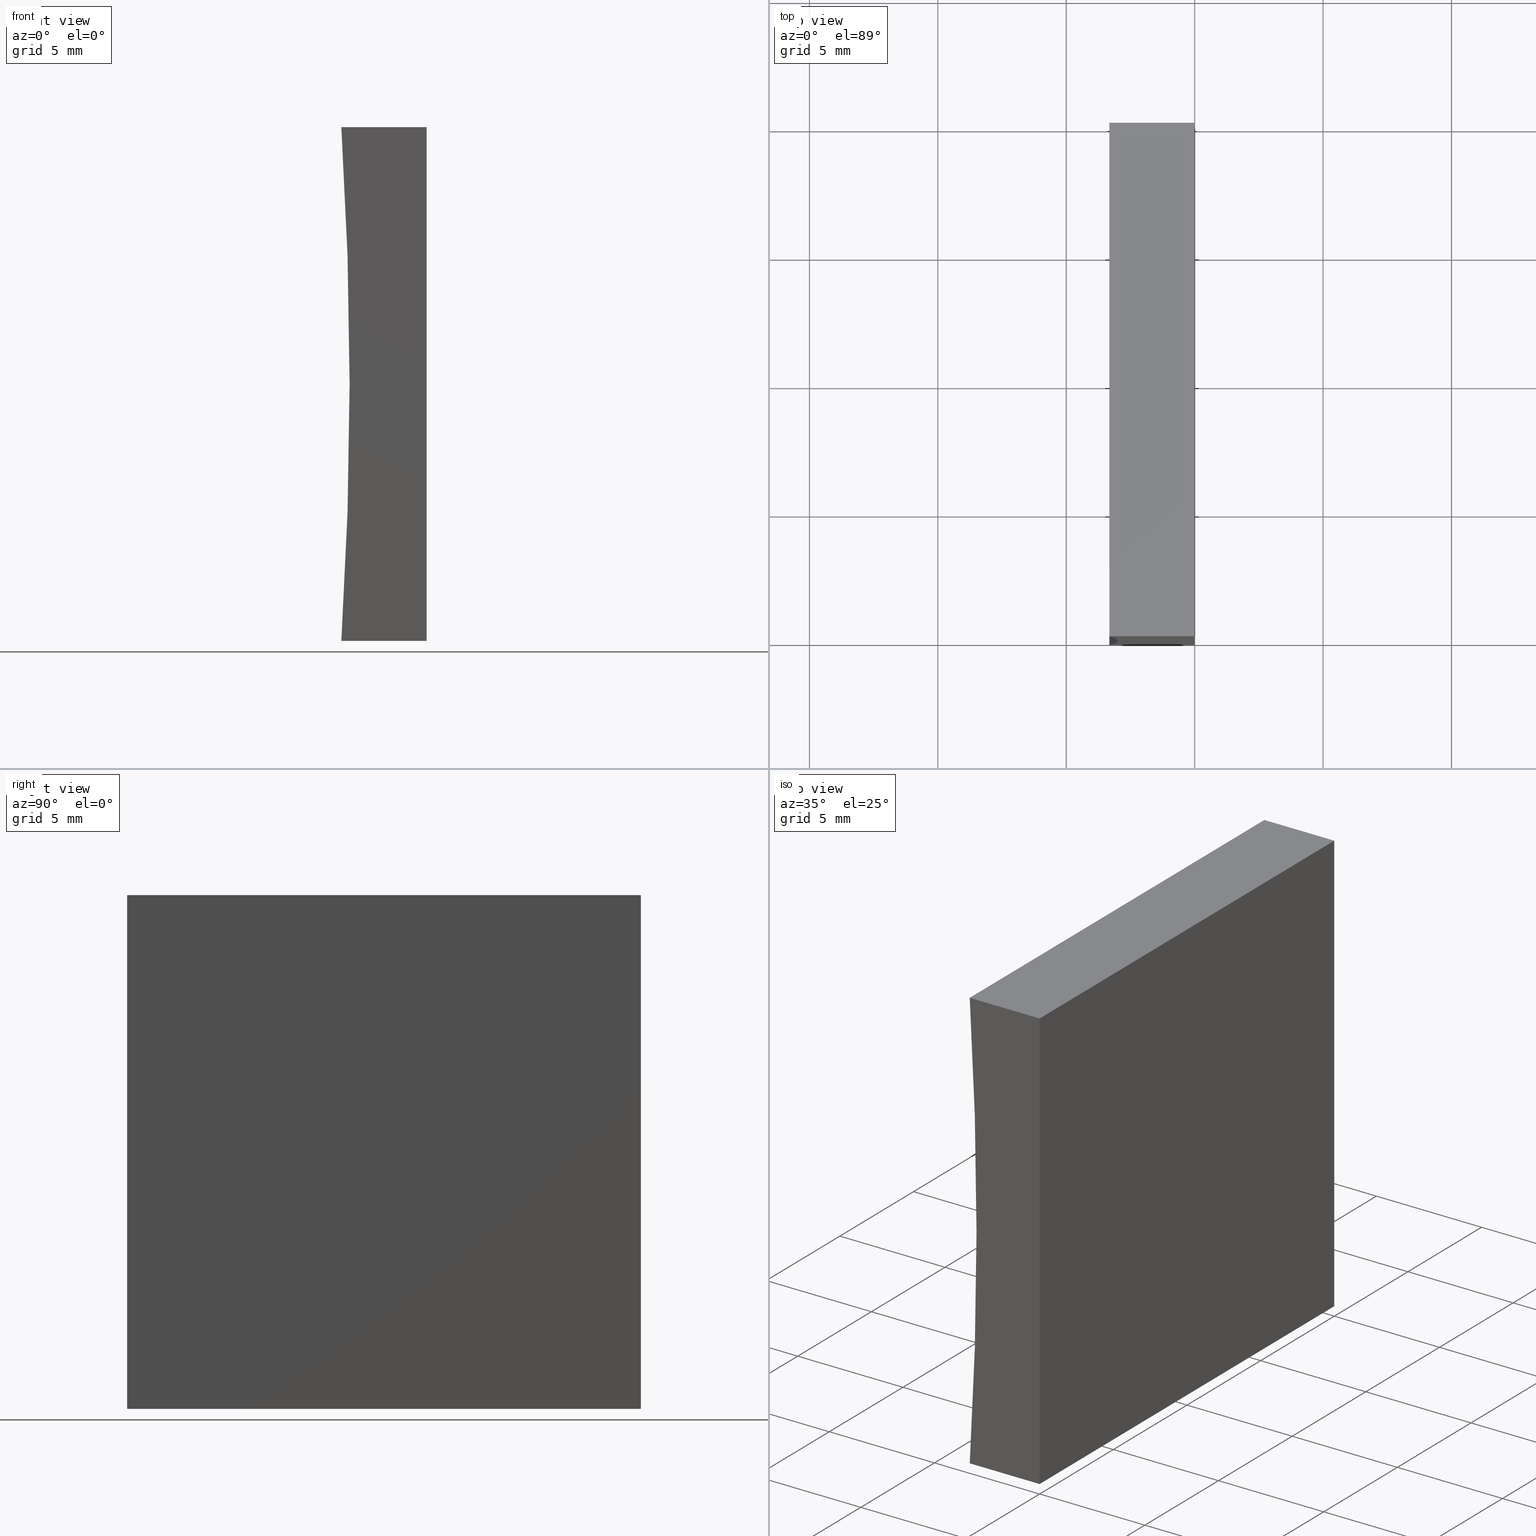
[diagram: canonical four-view strip — front | top / right | iso, engineering-drawing reading convention]
A machine part, canonical four-view strip (front | top / right | iso — engineering-drawing reading convention). The complete STEP part file that produces these views, byte-faithful:
ISO-10303-21;
HEADER;
FILE_DESCRIPTION (( 'STEP AP214' ),
    '1' );
FILE_NAME ('155351.STEP',
    '2019-06-28T06:11:06',
    ( 'user' ),
    ( '΢���й�' ),
    'SwSTEP 2.0',
    'SolidWorks 2016',
    '' );
FILE_SCHEMA (( 'AUTOMOTIVE_DESIGN' ));
ENDSEC;

DATA;
#1 = LINE ( 'NONE', #199, #136 ) ;
#2 = PLANE ( 'NONE',  #117 ) ;
#3 = CARTESIAN_POINT ( 'NONE',  ( 1.224646799147353300E-015, 20.00000000000000000, 20.00000000000000000 ) ) ;
#4 = PRODUCT_DEFINITION_CONTEXT ( 'detailed design', #139, 'design' ) ;
#5 = CARTESIAN_POINT ( 'NONE',  ( 1.224646799147353300E-015, 20.00000000000000000, 20.00000000000000000 ) ) ;
#6 = PLANE ( 'NONE',  #104 ) ;
#7 = DIRECTION ( 'NONE',  ( 0.0000000000000000000, 0.0000000000000000000, 1.000000000000000000 ) ) ;
#8 = SURFACE_STYLE_USAGE ( .BOTH. , #26 ) ;
#9 = PRODUCT_CONTEXT ( 'NONE', #68, 'mechanical' ) ;
#10 = EDGE_CURVE ( 'NONE', #130, #58, #1, .T. ) ;
#11 = MANIFOLD_SOLID_BREP ( '͹̨-����1', #107 ) ;
#12 = DIRECTION ( 'NONE',  ( 0.0000000000000000000, 1.000000000000000000, 0.0000000000000000000 ) ) ;
#13 = ORIENTED_EDGE ( 'NONE', *, *, #100, .F. ) ;
#14 = ORIENTED_EDGE ( 'NONE', *, *, #69, .F. ) ;
#15 = FACE_OUTER_BOUND ( 'NONE', #171, .T. ) ;
#16 = DIRECTION ( 'NONE',  ( 0.0000000000000000000, 0.0000000000000000000, -1.000000000000000000 ) ) ;
#17 = CARTESIAN_POINT ( 'NONE',  ( -158.0999999999999900, 20.00000000000000000, 10.00000000000002300 ) ) ;
#18 = AXIS2_PLACEMENT_3D ( 'NONE', #118, #7, #158 ) ;
#19 = ORIENTED_EDGE ( 'NONE', *, *, #66, .F. ) ;
#20 =( NAMED_UNIT ( * ) PLANE_ANGLE_UNIT ( ) SI_UNIT ( $, .RADIAN. ) );
#21 = LINE ( 'NONE', #137, #97 ) ;
#22 = DIRECTION ( 'NONE',  ( 0.0000000000000000000, 1.000000000000000000, 0.0000000000000000000 ) ) ;
#23 = STYLED_ITEM ( 'NONE', ( #31 ), #59 ) ;
#24 = CARTESIAN_POINT ( 'NONE',  ( -158.0999999999999900, 0.0000000000000000000, 10.00000000000002300 ) ) ;
#25 = DIRECTION ( 'NONE',  ( 0.0000000000000000000, -0.0000000000000000000, 1.000000000000000000 ) ) ;
#26 = SURFACE_SIDE_STYLE ('',( #179 ) ) ;
#27 = UNCERTAINTY_MEASURE_WITH_UNIT (LENGTH_MEASURE( 1.000000000000000100E-005 ), #77, 'distance_accuracy_value', 'NONE');
#28 = MECHANICAL_DESIGN_GEOMETRIC_PRESENTATION_REPRESENTATION (  '', ( #126 ), #147 ) ;
#29 = EDGE_CURVE ( 'NONE', #194, #201, #195, .T. ) ;
#30 = ORIENTED_EDGE ( 'NONE', *, *, #69, .T. ) ;
#31 = PRESENTATION_STYLE_ASSIGNMENT (( #8 ) ) ;
#32 = PRODUCT_DEFINITION ( 'δ֪', '', #110, #4 ) ;
#33 = DIRECTION ( 'NONE',  ( 1.000000000000000000, -0.0000000000000000000, -0.0000000000000000000 ) ) ;
#34 = DIRECTION ( 'NONE',  ( -1.000000000000000000, 0.0000000000000000000, 6.123233995736766000E-017 ) ) ;
#35 = VECTOR ( 'NONE', #39, 1000.000000000000000 ) ;
#36 = DIRECTION ( 'NONE',  ( -1.000000000000000000, 0.0000000000000000000, 0.0000000000000000000 ) ) ;
#37 = LINE ( 'NONE', #129, #133 ) ;
#38 = CARTESIAN_POINT ( 'NONE',  ( -158.0999999999999900, 0.0000000000000000000, 10.00000000000002300 ) ) ;
#39 = DIRECTION ( 'NONE',  ( -0.0000000000000000000, -1.000000000000000000, -0.0000000000000000000 ) ) ;
#40 = CARTESIAN_POINT ( 'NONE',  ( 1.224646799147353300E-015, 0.0000000000000000000, 20.00000000000000000 ) ) ;
#41 = EDGE_CURVE ( 'NONE', #172, #130, #44, .T. ) ;
#42 = FILL_AREA_STYLE ('',( #200 ) ) ;
#43 = PRESENTATION_LAYER_ASSIGNMENT (  '', '', ( #126 ) ) ;
#44 = CIRCLE ( 'NONE', #203, 155.1000000000000200 ) ;
#45 = ORIENTED_EDGE ( 'NONE', *, *, #168, .F. ) ;
#46 = CARTESIAN_POINT ( 'NONE',  ( -3.322708383949296800, 0.0000000000000000000, 1.734723475976807100E-015 ) ) ;
#47 = ORIENTED_EDGE ( 'NONE', *, *, #204, .F. ) ;
#48 = DIRECTION ( 'NONE',  ( -6.123233995736766000E-017, -0.0000000000000000000, -1.000000000000000000 ) ) ;
#49 = EDGE_LOOP ( 'NONE', ( #109, #13, #50, #178 ) ) ;
#50 = ORIENTED_EDGE ( 'NONE', *, *, #180, .F. ) ;
#51 =( NAMED_UNIT ( * ) SI_UNIT ( $, .STERADIAN. ) SOLID_ANGLE_UNIT ( ) );
#52 = ORIENTED_EDGE ( 'NONE', *, *, #41, .T. ) ;
#53 = DIRECTION ( 'NONE',  ( 1.000000000000000000, -0.0000000000000000000, -0.0000000000000000000 ) ) ;
#54 = LINE ( 'NONE', #131, #115 ) ;
#55 = CARTESIAN_POINT ( 'NONE',  ( -3.322708383949296800, 20.00000000000000000, 1.734723475976807100E-015 ) ) ;
#56 = ORIENTED_EDGE ( 'NONE', *, *, #70, .F. ) ;
#57 = ADVANCED_FACE ( 'NONE', ( #15 ), #120, .F. ) ;
#58 = VERTEX_POINT ( 'NONE', #5 ) ;
#59 = ADVANCED_BREP_SHAPE_REPRESENTATION ( '155351', ( #11, #18 ), #191 ) ;
#60 =( LENGTH_UNIT ( ) NAMED_UNIT ( * ) SI_UNIT ( .MILLI., .METRE. ) );
#61 = PRODUCT ( '155351', '155351', '', ( #9 ) ) ;
#62 = CARTESIAN_POINT ( 'NONE',  ( -3.322708383949296800, 20.00000000000000000, 1.734723475976807100E-015 ) ) ;
#63 = VERTEX_POINT ( 'NONE', #155 ) ;
#64 =( GEOMETRIC_REPRESENTATION_CONTEXT ( 3 ) GLOBAL_UNCERTAINTY_ASSIGNED_CONTEXT ( ( #73 ) ) GLOBAL_UNIT_ASSIGNED_CONTEXT ( ( #193, #134, #51 ) ) REPRESENTATION_CONTEXT ( 'NONE', 'WORKASPACE' ) );
#65 = DIRECTION ( 'NONE',  ( -0.0000000000000000000, -1.000000000000000000, -0.0000000000000000000 ) ) ;
#66 = EDGE_CURVE ( 'NONE', #58, #108, #75, .T. ) ;
#67 = FACE_OUTER_BOUND ( 'NONE', #156, .T. ) ;
#68 = APPLICATION_CONTEXT ( 'automotive_design' ) ;
#69 = EDGE_CURVE ( 'NONE', #108, #63, #54, .T. ) ;
#70 = EDGE_CURVE ( 'NONE', #114, #63, #94, .T. ) ;
#71 = SURFACE_STYLE_USAGE ( .BOTH. , #101 ) ;
#72 = DIRECTION ( 'NONE',  ( 1.000000000000000000, 0.0000000000000000000, -0.0000000000000000000 ) ) ;
#73 = UNCERTAINTY_MEASURE_WITH_UNIT (LENGTH_MEASURE( 1.000000000000000100E-005 ), #193, 'distance_accuracy_value', 'NONE');
#74 = CARTESIAN_POINT ( 'NONE',  ( -158.0999999999999900, 20.00000000000000000, 10.00000000000002300 ) ) ;
#75 = LINE ( 'NONE', #169, #35 ) ;
#76 = DIRECTION ( 'NONE',  ( 0.0000000000000000000, 0.0000000000000000000, 1.000000000000000000 ) ) ;
#77 =( LENGTH_UNIT ( ) NAMED_UNIT ( * ) SI_UNIT ( .MILLI., .METRE. ) );
#78 = PRESENTATION_LAYER_ASSIGNMENT (  '', '', ( #23 ) ) ;
#79 = APPLICATION_PROTOCOL_DEFINITION ( 'draft international standard', 'automotive_design', 1998, #139 ) ;
#80 = AXIS2_PLACEMENT_3D ( 'NONE', #24, #12, #121 ) ;
#81 = DIRECTION ( 'NONE',  ( -1.000000000000000000, 0.0000000000000000000, -0.0000000000000000000 ) ) ;
#82 = SHAPE_DEFINITION_REPRESENTATION ( #105, #59 ) ;
#83 = FACE_OUTER_BOUND ( 'NONE', #49, .T. ) ;
#84 = DIRECTION ( 'NONE',  ( -0.0000000000000000000, -1.000000000000000000, -0.0000000000000000000 ) ) ;
#85 = CARTESIAN_POINT ( 'NONE',  ( 0.0000000000000000000, 20.00000000000000000, 0.0000000000000000000 ) ) ;
#86 = ORIENTED_EDGE ( 'NONE', *, *, #180, .T. ) ;
#87 = DIRECTION ( 'NONE',  ( -1.000000000000000000, 0.0000000000000000000, 0.0000000000000000000 ) ) ;
#88 = LINE ( 'NONE', #62, #128 ) ;
#89 = DIRECTION ( 'NONE',  ( 0.0000000000000000000, 0.0000000000000000000, 1.000000000000000000 ) ) ;
#90 = ORIENTED_EDGE ( 'NONE', *, *, #198, .F. ) ;
#91 = UNCERTAINTY_MEASURE_WITH_UNIT (LENGTH_MEASURE( 1.000000000000000100E-005 ), #60, 'distance_accuracy_value', 'NONE');
#92 = DIRECTION ( 'NONE',  ( -0.0000000000000000000, -1.000000000000000000, -0.0000000000000000000 ) ) ;
#93 = DIRECTION ( 'NONE',  ( -0.0000000000000000000, -1.000000000000000000, -0.0000000000000000000 ) ) ;
#94 = LINE ( 'NONE', #196, #132 ) ;
#95 = DIRECTION ( 'NONE',  ( -0.0000000000000000000, -1.000000000000000000, -0.0000000000000000000 ) ) ;
#96 = COLOUR_RGB ( '',1.000000000000000000, 1.000000000000000000, 1.000000000000000000 ) ;
#97 = VECTOR ( 'NONE', #177, 1000.000000000000000 ) ;
#98 = ORIENTED_EDGE ( 'NONE', *, *, #66, .T. ) ;
#99 =( NAMED_UNIT ( * ) SI_UNIT ( $, .STERADIAN. ) SOLID_ANGLE_UNIT ( ) );
#100 = EDGE_CURVE ( 'NONE', #172, #194, #88, .T. ) ;
#101 = SURFACE_SIDE_STYLE ('',( #125 ) ) ;
#102 = DIRECTION ( 'NONE',  ( 6.123233995736766000E-017, 0.0000000000000000000, 1.000000000000000000 ) ) ;
#103 = CARTESIAN_POINT ( 'NONE',  ( -3.322708383949298600, 20.00000000000000000, 20.00000000000000000 ) ) ;
#104 = AXIS2_PLACEMENT_3D ( 'NONE', #85, #34, #102 ) ;
#105 = PRODUCT_DEFINITION_SHAPE ( 'NONE', 'NONE',  #32 ) ;
#106 = PRODUCT_RELATED_PRODUCT_CATEGORY ( 'part', '', ( #61 ) ) ;
#107 = CLOSED_SHELL ( 'NONE', ( #149, #57, #160, #116, #163, #164 ) ) ;
#108 = VERTEX_POINT ( 'NONE', #183 ) ;
#109 = ORIENTED_EDGE ( 'NONE', *, *, #168, .T. ) ;
#110 = PRODUCT_DEFINITION_FORMATION_WITH_SPECIFIED_SOURCE ( '�κ�', '', #61, .NOT_KNOWN. ) ;
#111 = CARTESIAN_POINT ( 'NONE',  ( 0.0000000000000000000, 0.0000000000000000000, 0.0000000000000000000 ) ) ;
#112 = FACE_OUTER_BOUND ( 'NONE', #167, .T. ) ;
#113 = PLANE ( 'NONE',  #181 ) ;
#114 = VERTEX_POINT ( 'NONE', #157 ) ;
#115 = VECTOR ( 'NONE', #48, 1000.000000000000000 ) ;
#116 = ADVANCED_FACE ( 'NONE', ( #173 ), #6, .F. ) ;
#117 = AXIS2_PLACEMENT_3D ( 'NONE', #123, #25, #72 ) ;
#118 = CARTESIAN_POINT ( 'NONE',  ( 0.0000000000000000000, 0.0000000000000000000, 0.0000000000000000000 ) ) ;
#119 = ORIENTED_EDGE ( 'NONE', *, *, #174, .F. ) ;
#120 = CYLINDRICAL_SURFACE ( 'NONE', #151, 155.0999999999999700 ) ;
#121 = DIRECTION ( 'NONE',  ( 0.0000000000000000000, -0.0000000000000000000, 1.000000000000000000 ) ) ;
#122 =( NAMED_UNIT ( * ) SI_UNIT ( $, .STERADIAN. ) SOLID_ANGLE_UNIT ( ) );
#123 = CARTESIAN_POINT ( 'NONE',  ( 0.0000000000000000000, 20.00000000000000000, 0.0000000000000000000 ) ) ;
#124 = LINE ( 'NONE', #152, #140 ) ;
#125 = SURFACE_STYLE_FILL_AREA ( #42 ) ;
#126 = STYLED_ITEM ( 'NONE', ( #189 ), #11 ) ;
#127 = VECTOR ( 'NONE', #36, 1000.000000000000000 ) ;
#128 = VECTOR ( 'NONE', #84, 1000.000000000000000 ) ;
#129 = CARTESIAN_POINT ( 'NONE',  ( 0.0000000000000000000, 20.00000000000000000, 0.0000000000000000000 ) ) ;
#130 = VERTEX_POINT ( 'NONE', #103 ) ;
#131 = CARTESIAN_POINT ( 'NONE',  ( 0.0000000000000000000, 0.0000000000000000000, 0.0000000000000000000 ) ) ;
#132 = VECTOR ( 'NONE', #95, 1000.000000000000000 ) ;
#133 = VECTOR ( 'NONE', #87, 1000.000000000000000 ) ;
#134 =( NAMED_UNIT ( * ) PLANE_ANGLE_UNIT ( ) SI_UNIT ( $, .RADIAN. ) );
#135 = APPLICATION_PROTOCOL_DEFINITION ( 'draft international standard', 'automotive_design', 1998, #68 ) ;
#136 = VECTOR ( 'NONE', #33, 1000.000000000000000 ) ;
#137 = CARTESIAN_POINT ( 'NONE',  ( 0.0000000000000000000, 20.00000000000000000, 0.0000000000000000000 ) ) ;
#138 = FILL_AREA_STYLE ('',( #186 ) ) ;
#139 = APPLICATION_CONTEXT ( 'automotive_design' ) ;
#140 = VECTOR ( 'NONE', #197, 1000.000000000000000 ) ;
#141 = AXIS2_PLACEMENT_3D ( 'NONE', #38, #93, #89 ) ;
#142 = ORIENTED_EDGE ( 'NONE', *, *, #10, .F. ) ;
#143 = ORIENTED_EDGE ( 'NONE', *, *, #29, .F. ) ;
#144 = ORIENTED_EDGE ( 'NONE', *, *, #29, .T. ) ;
#145 = ORIENTED_EDGE ( 'NONE', *, *, #174, .T. ) ;
#146 = EDGE_LOOP ( 'NONE', ( #45, #14, #47, #143 ) ) ;
#147 =( GEOMETRIC_REPRESENTATION_CONTEXT ( 3 ) GLOBAL_UNCERTAINTY_ASSIGNED_CONTEXT ( ( #91 ) ) GLOBAL_UNIT_ASSIGNED_CONTEXT ( ( #60, #20, #99 ) ) REPRESENTATION_CONTEXT ( 'NONE', 'WORKASPACE' ) );
#148 = LINE ( 'NONE', #111, #127 ) ;
#149 = ADVANCED_FACE ( 'NONE', ( #83 ), #2, .F. ) ;
#150 =( NAMED_UNIT ( * ) PLANE_ANGLE_UNIT ( ) SI_UNIT ( $, .RADIAN. ) );
#151 = AXIS2_PLACEMENT_3D ( 'NONE', #162, #92, #16 ) ;
#152 = CARTESIAN_POINT ( 'NONE',  ( -3.322708383949298600, 20.00000000000000000, 20.00000000000000000 ) ) ;
#153 = PLANE ( 'NONE',  #161 ) ;
#154 = DIRECTION ( 'NONE',  ( 0.0000000000000000000, -0.0000000000000000000, 1.000000000000000000 ) ) ;
#155 = CARTESIAN_POINT ( 'NONE',  ( 0.0000000000000000000, 0.0000000000000000000, 0.0000000000000000000 ) ) ;
#156 = EDGE_LOOP ( 'NONE', ( #202, #19, #142, #185 ) ) ;
#157 = CARTESIAN_POINT ( 'NONE',  ( 0.0000000000000000000, 20.00000000000000000, 0.0000000000000000000 ) ) ;
#158 = DIRECTION ( 'NONE',  ( 1.000000000000000000, 0.0000000000000000000, 0.0000000000000000000 ) ) ;
#159 = ORIENTED_EDGE ( 'NONE', *, *, #100, .T. ) ;
#160 = ADVANCED_FACE ( 'NONE', ( #67 ), #113, .F. ) ;
#161 = AXIS2_PLACEMENT_3D ( 'NONE', #17, #22, #154 ) ;
#162 = CARTESIAN_POINT ( 'NONE',  ( -158.0999999999999900, 20.00000000000000000, 10.00000000000002300 ) ) ;
#163 = ADVANCED_FACE ( 'NONE', ( #112 ), #153, .T. ) ;
#164 = ADVANCED_FACE ( 'NONE', ( #165 ), #187, .F. ) ;
#165 = FACE_OUTER_BOUND ( 'NONE', #146, .T. ) ;
#166 = ORIENTED_EDGE ( 'NONE', *, *, #10, .T. ) ;
#167 = EDGE_LOOP ( 'NONE', ( #86, #52, #166, #145 ) ) ;
#168 = EDGE_CURVE ( 'NONE', #63, #194, #148, .T. ) ;
#169 = CARTESIAN_POINT ( 'NONE',  ( 1.224646799147353300E-015, 20.00000000000000000, 20.00000000000000000 ) ) ;
#170 = MECHANICAL_DESIGN_GEOMETRIC_PRESENTATION_REPRESENTATION (  '', ( #23 ), #64 ) ;
#171 = EDGE_LOOP ( 'NONE', ( #144, #90, #188, #159 ) ) ;
#172 = VERTEX_POINT ( 'NONE', #55 ) ;
#173 = FACE_OUTER_BOUND ( 'NONE', #176, .T. ) ;
#174 = EDGE_CURVE ( 'NONE', #58, #114, #21, .T. ) ;
#175 = VECTOR ( 'NONE', #53, 1000.000000000000000 ) ;
#176 = EDGE_LOOP ( 'NONE', ( #30, #56, #119, #98 ) ) ;
#177 = DIRECTION ( 'NONE',  ( -6.123233995736766000E-017, -0.0000000000000000000, -1.000000000000000000 ) ) ;
#178 = ORIENTED_EDGE ( 'NONE', *, *, #70, .T. ) ;
#179 = SURFACE_STYLE_FILL_AREA ( #138 ) ;
#180 = EDGE_CURVE ( 'NONE', #114, #172, #37, .T. ) ;
#181 = AXIS2_PLACEMENT_3D ( 'NONE', #3, #184, #81 ) ;
#182 = LINE ( 'NONE', #40, #175 ) ;
#183 = CARTESIAN_POINT ( 'NONE',  ( 1.224646799147353300E-015, 0.0000000000000000000, 20.00000000000000000 ) ) ;
#184 = DIRECTION ( 'NONE',  ( 0.0000000000000000000, 0.0000000000000000000, -1.000000000000000000 ) ) ;
#185 = ORIENTED_EDGE ( 'NONE', *, *, #198, .T. ) ;
#186 = FILL_AREA_STYLE_COLOUR ( '', #192 ) ;
#187 = PLANE ( 'NONE',  #80 ) ;
#188 = ORIENTED_EDGE ( 'NONE', *, *, #41, .F. ) ;
#189 = PRESENTATION_STYLE_ASSIGNMENT (( #71 ) ) ;
#190 = CARTESIAN_POINT ( 'NONE',  ( -3.322708383949298600, 0.0000000000000000000, 20.00000000000000000 ) ) ;
#191 =( GEOMETRIC_REPRESENTATION_CONTEXT ( 3 ) GLOBAL_UNCERTAINTY_ASSIGNED_CONTEXT ( ( #27 ) ) GLOBAL_UNIT_ASSIGNED_CONTEXT ( ( #77, #150, #122 ) ) REPRESENTATION_CONTEXT ( 'NONE', 'WORKASPACE' ) );
#192 = COLOUR_RGB ( '',1.000000000000000000, 1.000000000000000000, 1.000000000000000000 ) ;
#193 =( LENGTH_UNIT ( ) NAMED_UNIT ( * ) SI_UNIT ( .MILLI., .METRE. ) );
#194 = VERTEX_POINT ( 'NONE', #46 ) ;
#195 = CIRCLE ( 'NONE', #141, 155.1000000000000200 ) ;
#196 = CARTESIAN_POINT ( 'NONE',  ( 0.0000000000000000000, 20.00000000000000000, 0.0000000000000000000 ) ) ;
#197 = DIRECTION ( 'NONE',  ( -0.0000000000000000000, -1.000000000000000000, -0.0000000000000000000 ) ) ;
#198 = EDGE_CURVE ( 'NONE', #130, #201, #124, .T. ) ;
#199 = CARTESIAN_POINT ( 'NONE',  ( 1.224646799147353300E-015, 20.00000000000000000, 20.00000000000000000 ) ) ;
#200 = FILL_AREA_STYLE_COLOUR ( '', #96 ) ;
#201 = VERTEX_POINT ( 'NONE', #190 ) ;
#202 = ORIENTED_EDGE ( 'NONE', *, *, #204, .T. ) ;
#203 = AXIS2_PLACEMENT_3D ( 'NONE', #74, #65, #76 ) ;
#204 = EDGE_CURVE ( 'NONE', #201, #108, #182, .T. ) ;
ENDSEC;
END-ISO-10303-21;
